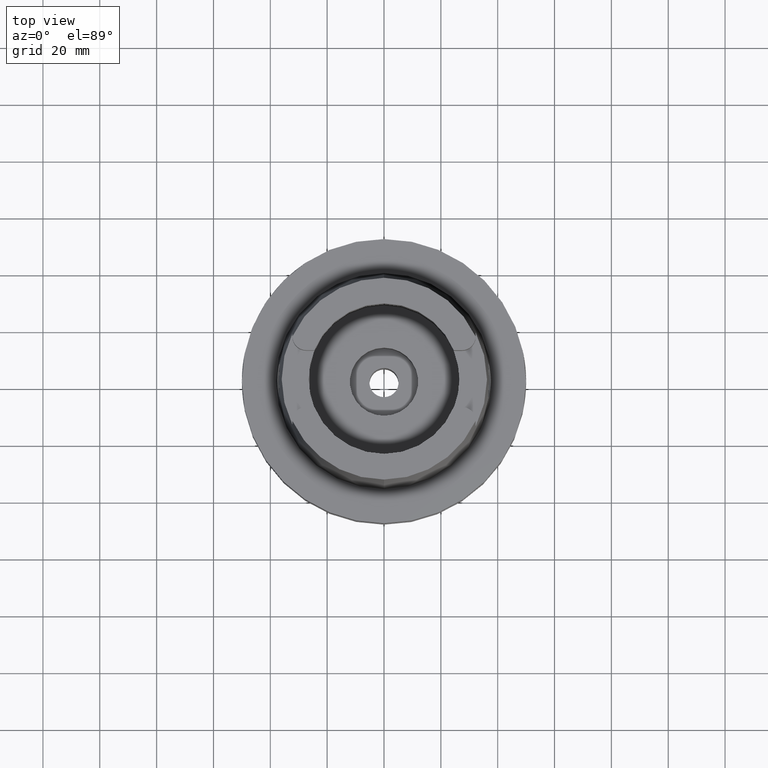
[diagram: clean part render]
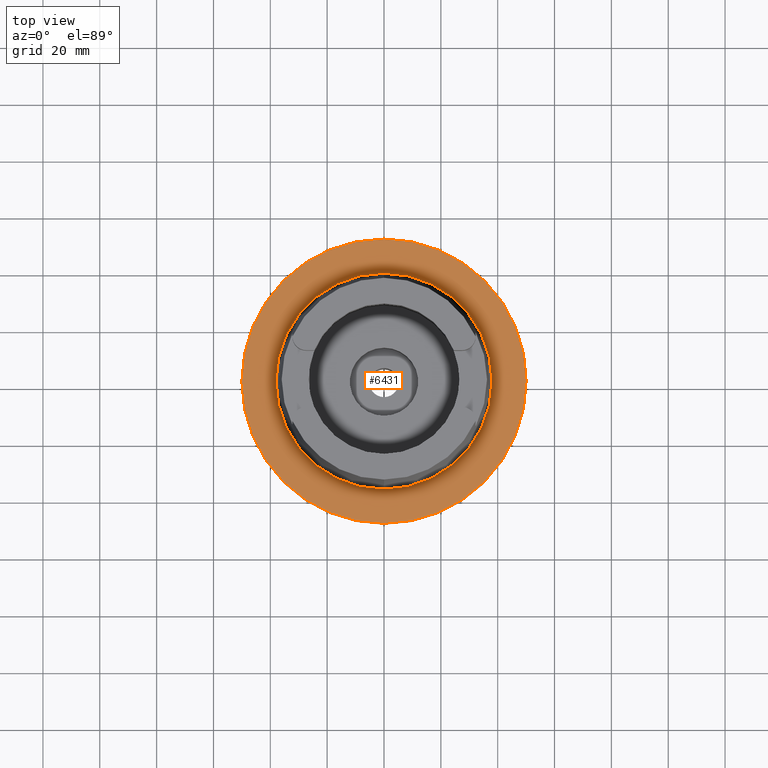
[diagram: same view with one face highlighted and labeled with its STEP entity id]
A machine part, top view. The second image highlights one B-rep face of the part: STEP entity #6431.
In plain terms, the highlighted planar face has unit normal (0, 0, 1).
Its self-contained STEP definition (entity closure, byte-faithful):
#3371=CARTESIAN_POINT('',(0.E0,0.E0,0.E0));
#3372=DIRECTION('',(0.E0,0.E0,-1.E0));
#3373=DIRECTION('',(0.E0,-1.E0,0.E0));
#3374=AXIS2_PLACEMENT_3D('',#3371,#3372,#3373);
#3379=CARTESIAN_POINT('',(0.E0,0.E0,0.E0));
#3380=DIRECTION('',(0.E0,0.E0,-1.E0));
#3381=DIRECTION('',(0.E0,1.E0,0.E0));
#3382=AXIS2_PLACEMENT_3D('',#3379,#3380,#3381);
#3387=CARTESIAN_POINT('',(0.E0,0.E0,1.136868377216E-13));
#3388=DIRECTION('',(0.E0,0.E0,1.E0));
#3389=DIRECTION('',(0.E0,-1.E0,0.E0));
#3390=AXIS2_PLACEMENT_3D('',#3387,#3388,#3389);
#3395=CARTESIAN_POINT('',(0.E0,0.E0,1.136868377216E-13));
#3396=DIRECTION('',(0.E0,0.E0,1.E0));
#3397=DIRECTION('',(0.E0,1.E0,0.E0));
#3398=AXIS2_PLACEMENT_3D('',#3395,#3396,#3397);
#3620=CARTESIAN_POINT('',(0.E0,-3.800001658252E1,2.273736754432E-13));
#3621=VERTEX_POINT('',#3620);
#3622=CARTESIAN_POINT('',(0.E0,3.800001658252E1,1.136868377216E-13));
#3623=VERTEX_POINT('',#3622);
#4063=CARTESIAN_POINT('',(0.E0,5.E1,0.E0));
#4064=VERTEX_POINT('',#4063);
#4065=CARTESIAN_POINT('',(0.E0,-5.E1,0.E0));
#4066=VERTEX_POINT('',#4065);
#6418=CARTESIAN_POINT('',(0.E0,0.E0,0.E0));
#6419=DIRECTION('',(0.E0,0.E0,1.E0));
#6420=DIRECTION('',(0.E0,1.E0,0.E0));
#6421=AXIS2_PLACEMENT_3D('',#6418,#6419,#6420);
#6422=PLANE('',#6421);
#6423=ORIENTED_EDGE('',*,*,#6183,.T.);
#6424=ORIENTED_EDGE('',*,*,#6292,.T.);
#6425=EDGE_LOOP('',(#6423,#6424));
#6426=FACE_OUTER_BOUND('',#6425,.F.);
#6427=ORIENTED_EDGE('',*,*,#4286,.T.);
#6428=ORIENTED_EDGE('',*,*,#4245,.T.);
#6429=EDGE_LOOP('',(#6427,#6428));
#6430=FACE_BOUND('',#6429,.F.);
#3375=CIRCLE('',#3374,5.E1);
#3383=CIRCLE('',#3382,5.E1);
#3391=CIRCLE('',#3390,3.800001658252E1);
#3399=CIRCLE('',#3398,3.800001658252E1);
#4245=EDGE_CURVE('',#3623,#3621,#3399,.T.);
#4286=EDGE_CURVE('',#3621,#3623,#3391,.T.);
#6183=EDGE_CURVE('',#4066,#4064,#3375,.T.);
#6292=EDGE_CURVE('',#4064,#4066,#3383,.T.);
#6431=ADVANCED_FACE('',(#6426,#6430),#6422,.T.);